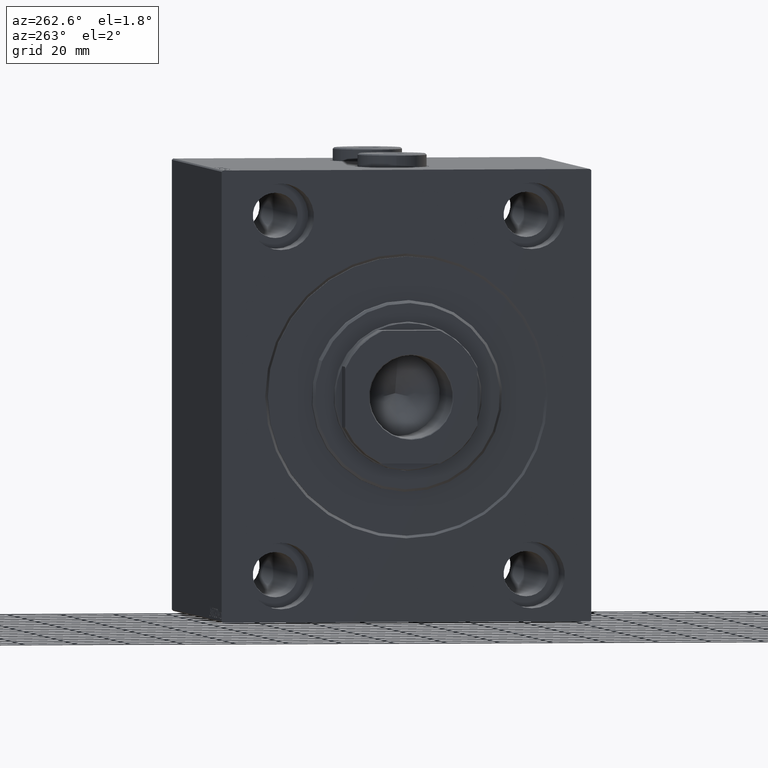
[diagram: clean part render]
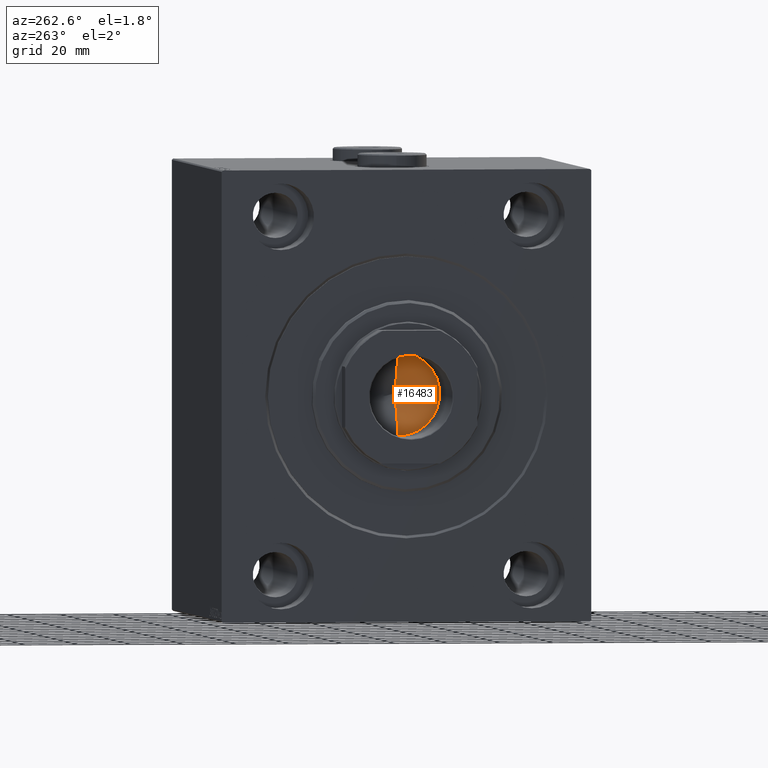
[diagram: same view with one face highlighted and labeled with its STEP entity id]
A machine part, auxiliary view. The second image highlights one B-rep face of the part: STEP entity #16483.
In plain terms, the highlighted conical surface has half-angle 59 deg.
Its self-contained STEP definition (entity closure, byte-faithful):
#662 = VECTOR ( 'NONE', #36852, 1000.000000000000000 ) ;
#1300 = DIRECTION ( 'NONE',  ( -0.000000000000000000, -0.000000000000000000, 1.000000000000000000 ) ) ;
#1334 = CARTESIAN_POINT ( 'NONE',  ( -15.74999999999999289, 1.928818708657080556E-15, 26.99999999999998934 ) ) ;
#1970 = FACE_OUTER_BOUND ( 'NONE', #23356, .T. ) ;
#2631 = DIRECTION ( 'NONE',  ( 1.000000000000000000, 0.000000000000000000, 0.000000000000000000 ) ) ;
#9266 = CARTESIAN_POINT ( 'NONE',  ( 15.74999999999999289, 0.000000000000000000, 26.99999999999998934 ) ) ;
#11038 = CARTESIAN_POINT ( 'NONE',  ( -15.74999999999999289, 1.928818708657080556E-15, 26.99999999999998934 ) ) ;
#11951 = VECTOR ( 'NONE', #21763, 1000.000000000000000 ) ;
#12337 = EDGE_CURVE ( 'NONE', #14655, #16693, #37231, .T. ) ;
#14037 = CONICAL_SURFACE ( 'NONE', #39532, 15.74999999999999289, 1.029744258676653645 ) ;
#14655 = VERTEX_POINT ( 'NONE', #1334 ) ;
#15912 = ORIENTED_EDGE ( 'NONE', *, *, #24323, .T. ) ;
#16483 = ADVANCED_FACE ( 'NONE', ( #1970 ), #14037, .F. ) ;
#16693 = VERTEX_POINT ( 'NONE', #28139 ) ;
#21203 = AXIS2_PLACEMENT_3D ( 'NONE', #43179, #33843, #2631 ) ;
#21763 = DIRECTION ( 'NONE',  ( -0.8571673007021118895, 1.049727191138618079E-16, 0.5150380749100549327 ) ) ;
#23356 = EDGE_LOOP ( 'NONE', ( #37123, #15912, #26205 ) ) ;
#23613 = VERTEX_POINT ( 'NONE', #33537 ) ;
#24323 = EDGE_CURVE ( 'NONE', #23613, #14655, #42046, .T. ) ;
#26205 = ORIENTED_EDGE ( 'NONE', *, *, #12337, .T. ) ;
#28139 = CARTESIAN_POINT ( 'NONE',  ( 15.74999999999999289, 0.000000000000000000, 26.99999999999998934 ) ) ;
#33537 = CARTESIAN_POINT ( 'NONE',  ( -1.199718644317817648E-14, 0.000000000000000000, 17.53644525031590362 ) ) ;
#33843 = DIRECTION ( 'NONE',  ( -0.000000000000000000, -0.000000000000000000, 1.000000000000000000 ) ) ;
#35972 = EDGE_CURVE ( 'NONE', #23613, #16693, #40259, .T. ) ;
#36852 = DIRECTION ( 'NONE',  ( 0.8571673007021118895, 0.000000000000000000, 0.5150380749100549327 ) ) ;
#37123 = ORIENTED_EDGE ( 'NONE', *, *, #35972, .F. ) ;
#37231 = CIRCLE ( 'NONE', #21203, 15.74999999999999289 ) ;
#39532 = AXIS2_PLACEMENT_3D ( 'NONE', #42984, #1300, #43432 ) ;
#40259 = LINE ( 'NONE', #9266, #662 ) ;
#42046 = LINE ( 'NONE', #11038, #11951 ) ;
#42984 = CARTESIAN_POINT ( 'NONE',  ( 0.000000000000000000, 0.000000000000000000, 26.99999999999998934 ) ) ;
#43179 = CARTESIAN_POINT ( 'NONE',  ( 0.000000000000000000, 0.000000000000000000, 26.99999999999998934 ) ) ;
#43432 = DIRECTION ( 'NONE',  ( 1.000000000000000000, 0.000000000000000000, 0.000000000000000000 ) ) ;